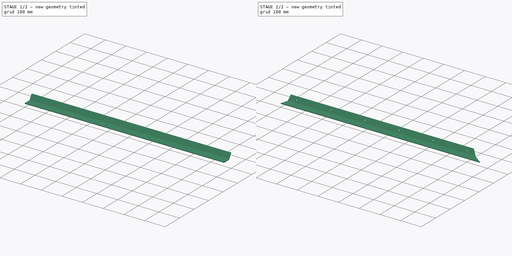
[diagram: build sequence overview — one tinted view per stage of 2, left to right]
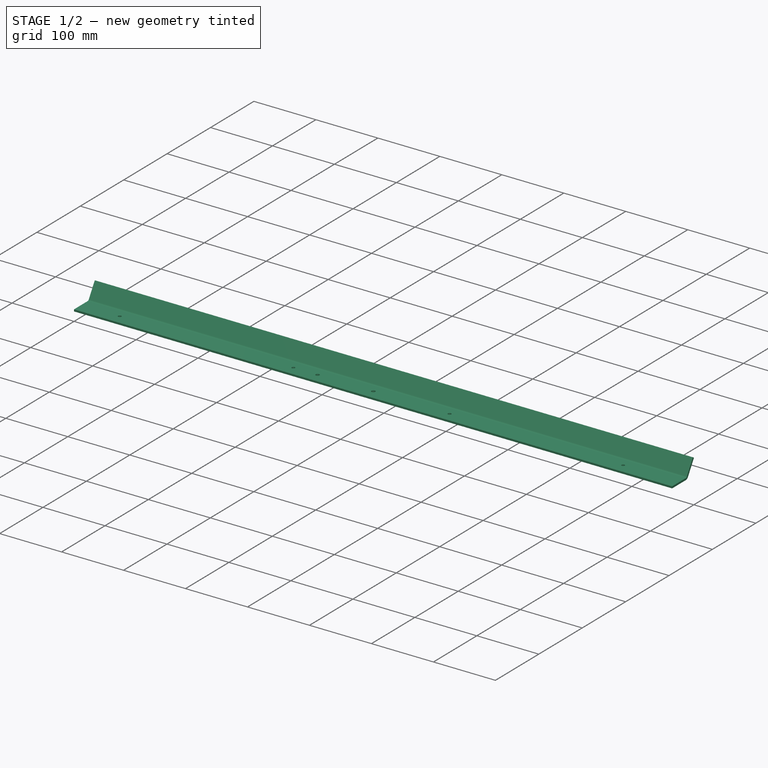
[diagram: stage 1 of 2 — iso view after this stage's code; geometry added in this stage tinted green]
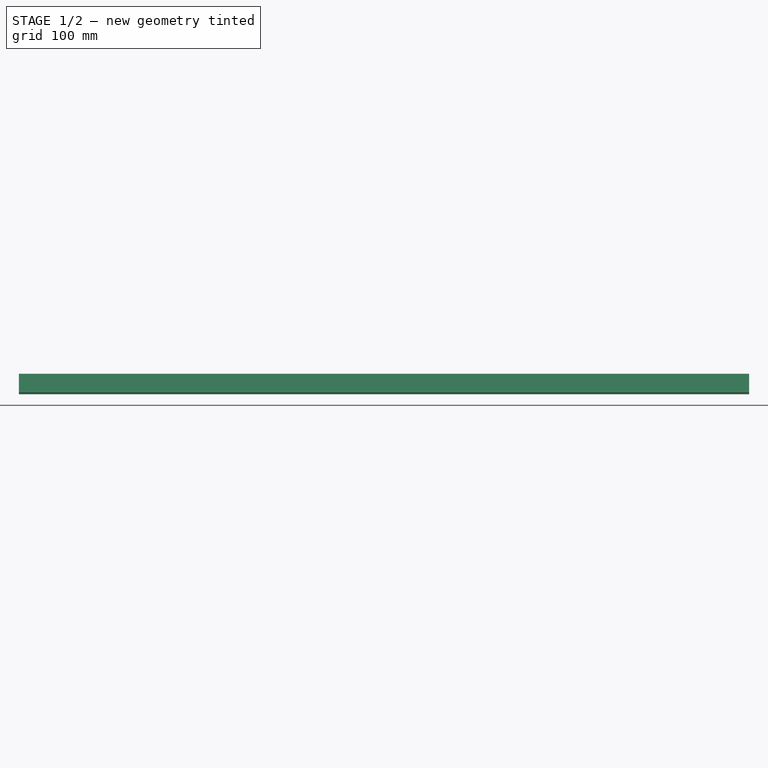
[diagram: stage 1 of 2 — front view after this stage's code; geometry added in this stage tinted green]
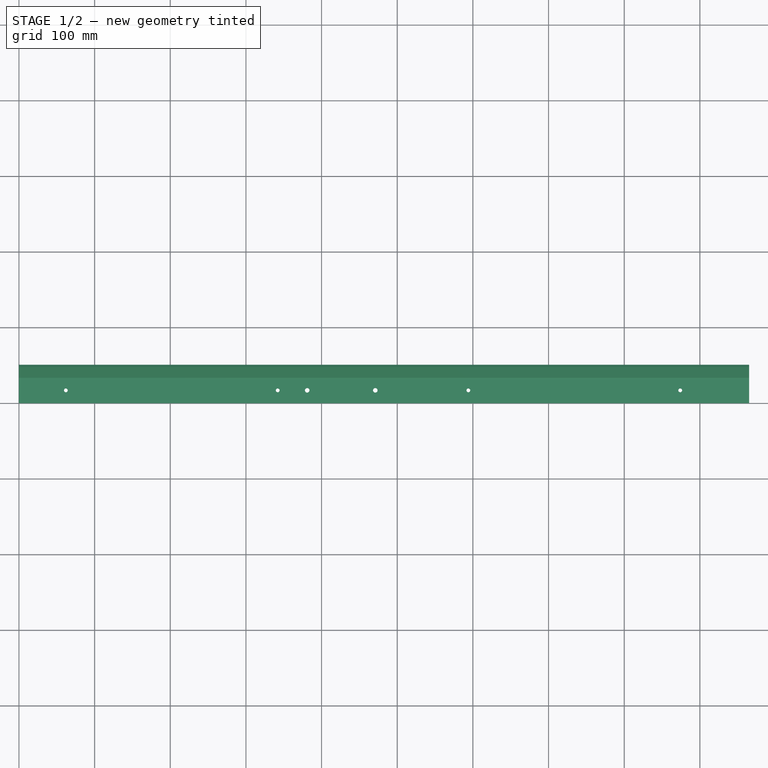
[diagram: stage 1 of 2 — top view after this stage's code; geometry added in this stage tinted green]
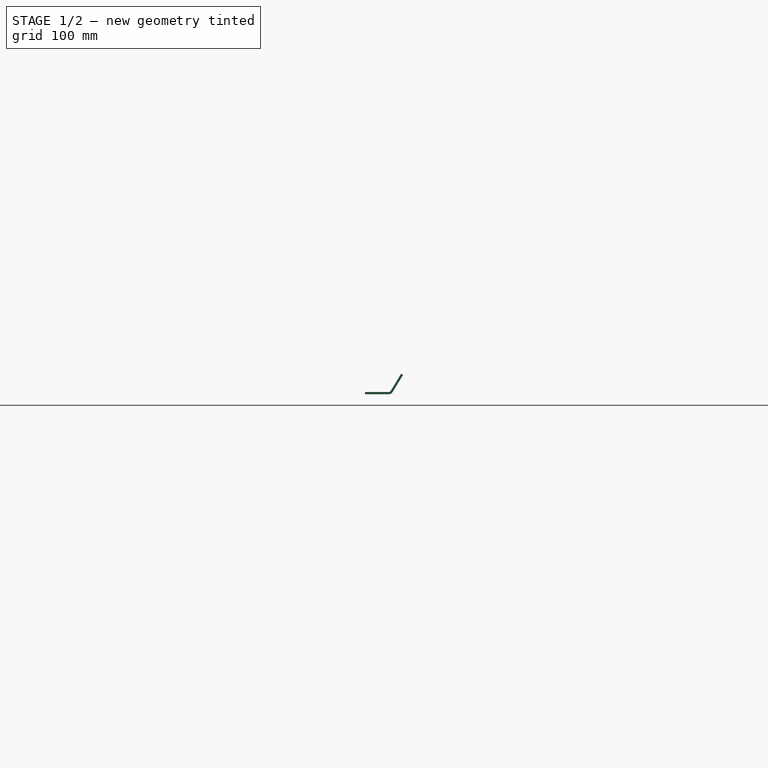
[diagram: stage 1 of 2 — right view after this stage's code; geometry added in this stage tinted green]
FCSTD DOCUMENT  (FreeCAD 0.20R29603 (Git))
Label: C520-210-pliage
License: All rights reserved
LicenseURL: http://en.wikipedia.org/wiki/All_rights_reserved
objects: Sketcher::SketchObject×5, PartDesign::Pocket×2, PartDesign::Pad×1, PartDesign::FeaturePython×1, PartDesign::Body×1
note: 13 computed .brp shape members not serialized (recipe doc carries the construction recipe); baked Part::Feature solids carry a one-line shape summary decoded from their .brp

FEATURE [Sketcher::SketchObject] Sketch
  FullyConstrained = true
  MapMode = 5
  Support = -> [XY_Plane]
  sketch-geometry (10):
    g0: LineSegment StartX=0 StartY=0 StartZ=0 EndX=965 EndY=0 EndZ=0
    g1: LineSegment StartX=965 StartY=0 StartZ=0 EndX=965 EndY=31.4 EndZ=0
    g2: LineSegment StartX=965 StartY=31.4 StartZ=0 EndX=0 EndY=31.4 EndZ=0
    g3: LineSegment StartX=0 StartY=31.4 StartZ=0 EndX=0 EndY=0 EndZ=0
    g4: Circle CenterX=62 CenterY=17 CenterZ=0 NormalX=0 NormalY=0 NormalZ=1 AngleXU=0 Radius=2.5
    g5: Circle CenterX=342 CenterY=17 CenterZ=0 NormalX=0 NormalY=0 NormalZ=1 AngleXU=0 Radius=2.5
    g6: Circle CenterX=381 CenterY=17 CenterZ=0 NormalX=0 NormalY=0 NormalZ=1 AngleXU=0 Radius=3
    g7: Circle CenterX=471 CenterY=17 CenterZ=0 NormalX=0 NormalY=0 NormalZ=1 AngleXU=0 Radius=3
    g8: Circle CenterX=594 CenterY=17 CenterZ=0 NormalX=0 NormalY=0 NormalZ=1 AngleXU=0 Radius=2.5
    g9: Circle CenterX=874 CenterY=17 CenterZ=0 NormalX=0 NormalY=0 NormalZ=1 AngleXU=0 Radius=2.5
  constraints (29):
    c: Coincident(g0,g1)
    c: Coincident(g1,g2)
    c: Coincident(g2,g3)
    c: Coincident(g3,g0)
    c: Horizontal(g0)
    c: Horizontal(g2)
    c: Vertical(g1)
    c: Vertical(g3)
    c: Coincident(g0,g-1)
    c: DistanceX(g2,g2) = 965
    c: DistanceY(g1,g1) = 31.4
    c: DistanceX(g0,g4) = 62
    c: DistanceX(g4,g5) = 280
    c: DistanceX(g5,g6) = 39
    c: DistanceX(g6,g7) = 90
    c: DistanceX(g7,g8) = 123
    c: DistanceX(g8,g9) = 280
    c: Horizontal(g4,g5)
    c: Horizontal(g5,g6)
    c: Horizontal(g6,g7)
    c: Horizontal(g7,g8)
    c: Horizontal(g8,g9)
    c: Equal(g6,g7)
    c: Diameter(g6) = 6
    c: DistanceY(g0,g4) = 17
    c: Equal(g4,g5)
    c: Equal(g4,g8)
    c: Equal(g4,g9)
    c: Diameter(g4) = 5
FEATURE [PartDesign::Pad] Pad
  Direction = (0,0,1)
  Length = 3
  Length2 = 10
  Profile = -> Sketch
  ReferenceAxis = -> Sketch [N_Axis]
  Type = 0
FEATURE [PartDesign::FeaturePython] Bend  # WARN: FeaturePython — macro-defined, semantics opaque (R4)
  AutoMiter = true
  BaseFeature = -> Pad
  BendType = 0
  LengthList = [26.6]
  LengthSpec = 0
  ReliefFactor = 0.7
  UseReliefFactor = false
  angle = 58.6
  baseObject = -> Pad [Face3]
  bendAList = [58.6]
  extend1 = 0
  extend2 = 0
  gap1 = 0
  gap2 = 0
  invert = false
  kfactor = 0.5
  length = 26.6
  maxExtendDist = 5
  minGap = 0.1
  minReliefGap = 1
  miterangle1 = 0
  miterangle2 = 0
  offset = 0
  radius = 3
  reliefType = 0
  reliefd = 1
  reliefw = 0.8
  sketchflip = false
  sketchinvert = false
  unfold = false
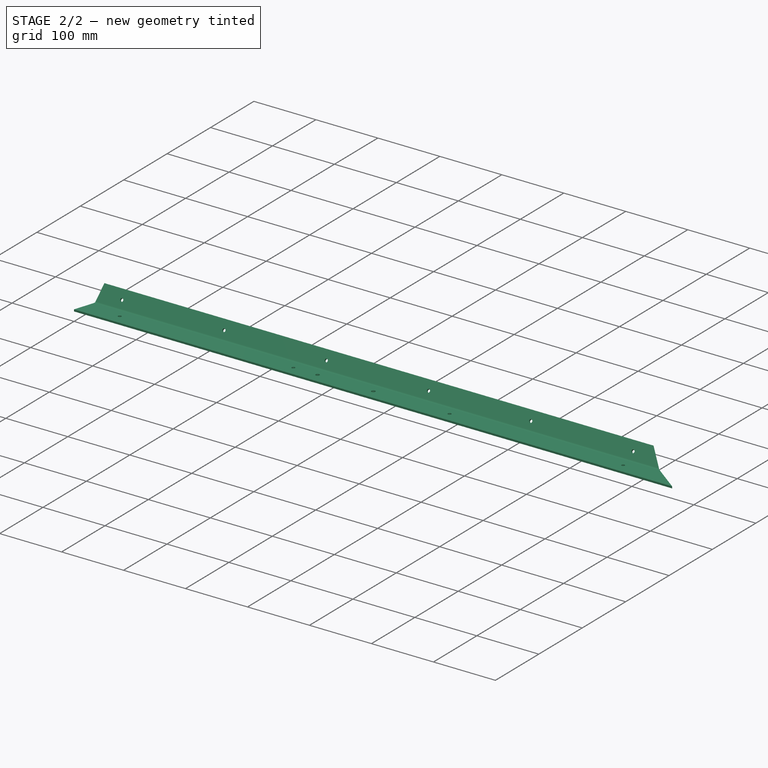
[diagram: stage 2 of 2 — iso view after this stage's code; geometry added in this stage tinted green]
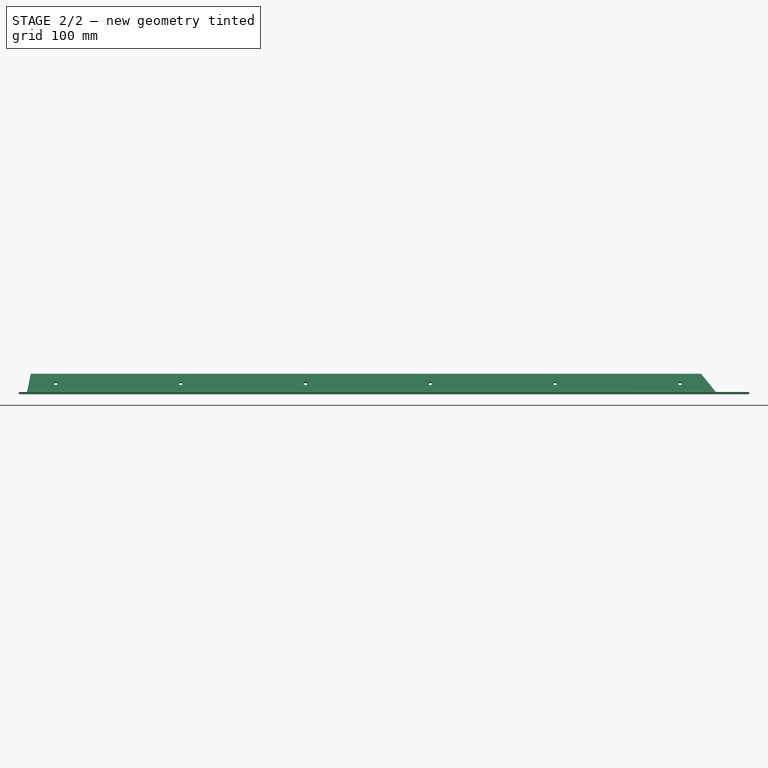
[diagram: stage 2 of 2 — front view after this stage's code; geometry added in this stage tinted green]
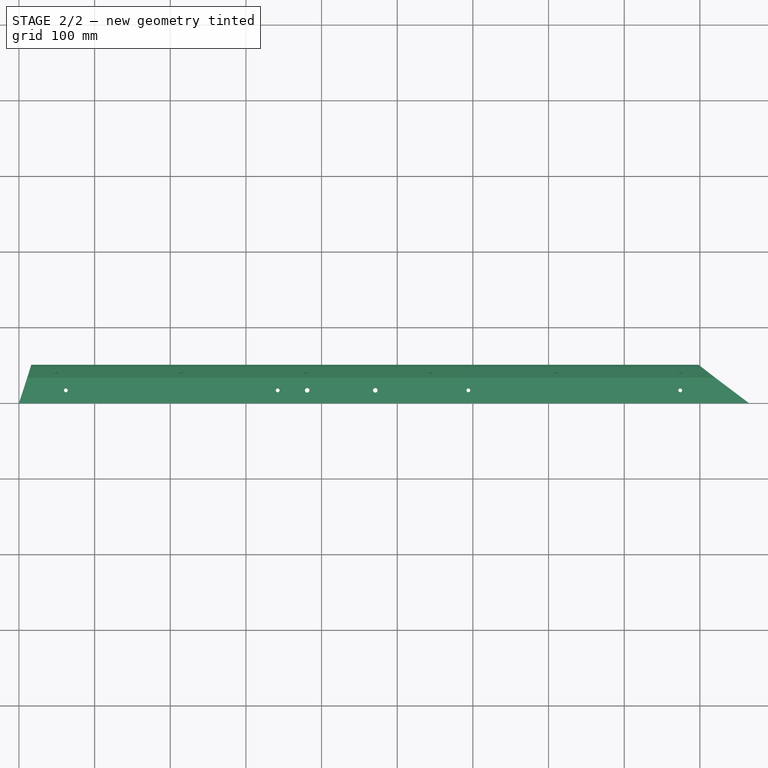
[diagram: stage 2 of 2 — top view after this stage's code; geometry added in this stage tinted green]
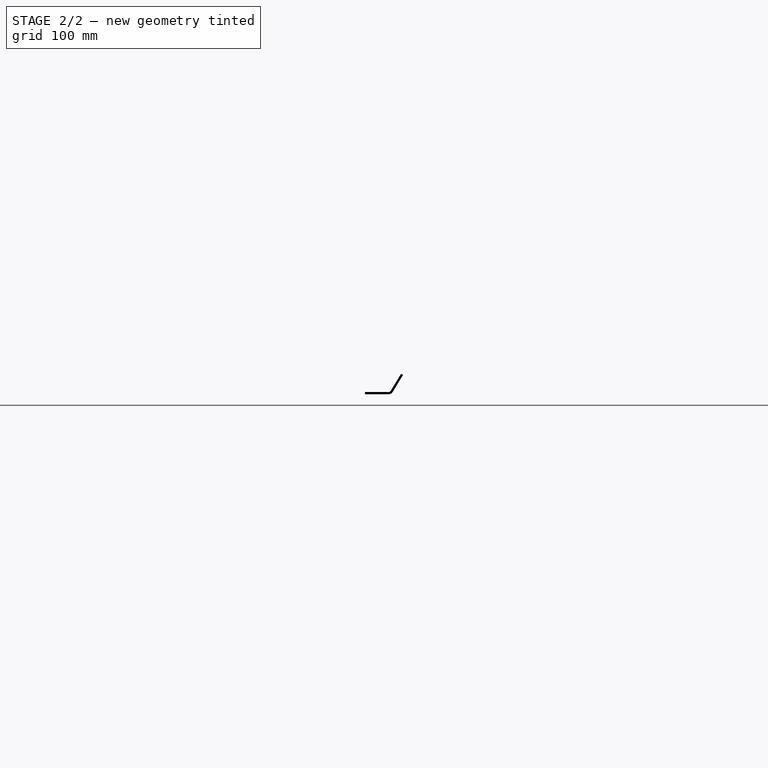
[diagram: stage 2 of 2 — right view after this stage's code; geometry added in this stage tinted green]
FEATURE [Sketcher::SketchObject] Sketch001
  ExternalGeometry = -> [Bend]
  FullyConstrained = true
  MapMode = 5
  Placement = pos=(0,0,3) rot=(0,0,1;0rad)
  Support = -> [Bend]
  sketch-geometry (6):
    g0: LineSegment StartX=0 StartY=0 StartZ=0 EndX=22.7444 EndY=70 EndZ=0
    g1: LineSegment StartX=22.7444 StartY=70 StartZ=0 EndX=0 EndY=70 EndZ=0
    g2: LineSegment StartX=0 StartY=70 StartZ=0 EndX=0 EndY=0 EndZ=0
    g3: LineSegment StartX=965 StartY=0 StartZ=0 EndX=872.107 EndY=70 EndZ=0
    g4: LineSegment StartX=872.107 StartY=70 StartZ=0 EndX=965 EndY=70 EndZ=0
    g5: LineSegment StartX=965 StartY=70 StartZ=0 EndX=965 EndY=0 EndZ=0
  constraints (16):
    c: Coincident(g-1,g0)
    c: Coincident(g0,g1)
    c: PointOnObject(g1,g-2)
    c: Horizontal(g1)
    c: Coincident(g1,g2)
    c: Coincident(g2,g0)
    c: Coincident(g-3,g3)
    c: Coincident(g3,g4)
    c: Horizontal(g4)
    c: Coincident(g4,g5)
    c: Coincident(g5,g3)
    c: Vertical(g5)
    c: Horizontal(g0,g3)
    c: DistanceY(g2,g2) = 70
    c: Angle(g0,g2) = 0.314159
    c: Angle(g5,g3) = 0.925025
FEATURE [PartDesign::Pocket] Pocket
  BaseFeature = -> Bend
  Direction = (0,0,-1)
  Length = 40
  Length2 = 40
  Profile = -> Sketch001
  ReferenceAxis = -> Sketch001 [N_Axis]
  Type = 4
FEATURE [Sketcher::SketchObject] Sketch002
  FullyConstrained = true
  MapMode = 5
  Placement = pos=(0,22.7688,-13.8982) rot=(1,0,0;1.02276rad)
  Support = -> [Pocket]
FEATURE [Sketcher::SketchObject] Sketch003
  ExternalGeometry = -> [Pocket]
  FullyConstrained = true
  MapMode = 5
  Placement = pos=(0,22.7688,-13.8982) rot=(1,0,0;1.02276rad)
  Support = -> [Pocket]
  sketch-geometry (6):
    g0: Circle CenterX=48.8 CenterY=33.081 CenterZ=0 NormalX=0 NormalY=0 NormalZ=1 AngleXU=0 Radius=2.5
    g1: Circle CenterX=213.8 CenterY=33.081 CenterZ=0 NormalX=0 NormalY=0 NormalZ=1 AngleXU=0 Radius=2.5
    g2: Circle CenterX=378.8 CenterY=33.081 CenterZ=0 NormalX=0 NormalY=0 NormalZ=1 AngleXU=0 Radius=2.5
    g3: Circle CenterX=543.8 CenterY=33.081 CenterZ=0 NormalX=0 NormalY=0 NormalZ=1 AngleXU=0 Radius=2.5
    g4: Circle CenterX=708.8 CenterY=33.081 CenterZ=0 NormalX=0 NormalY=0 NormalZ=1 AngleXU=0 Radius=2.5
    g5: Circle CenterX=873.8 CenterY=33.081 CenterZ=0 NormalX=0 NormalY=0 NormalZ=1 AngleXU=0 Radius=2.5
  constraints (14):
    c: Horizontal(g0,g1)
    c: Horizontal(g1,g2)
    c: Horizontal(g2,g3)
    c: Horizontal(g3,g4)
    c: Horizontal(g4,g5)
    c: DistanceX(g-1,g0) = 48.8
    c: DistanceX(g0,g1) = 165
    c: DistanceX(g1,g2) = 165
    c: DistanceX(g2,g3) = 165
    c: DistanceX(g3,g4) = 165
    c: DistanceX(g4,g5) = 165
    c: DistanceY(g0,g-3) = 15
    c: Equal(g0, g1-g5) x5
    c: Diameter(g0) = 5
FEATURE [PartDesign::Pocket] Pocket001
  BaseFeature = -> Pocket
  Direction = (0,0.853551,-0.52101)
  Length = 5
  Length2 = 5
  Profile = -> Sketch003
  ReferenceAxis = -> Sketch003 [N_Axis]
  Type = 0
FEATURE [PartDesign::Body] Body
  Group = -> [Sketch,Pad,Bend,Sketch001,Pocket,Sketch002,Sketch003,Pocket001]
  Origin = -> Origin
  Tip = -> Pocket001
FEATURE [Sketcher::SketchObject] Unfold_Sketch
  FullyConstrained = false
  sketch-geometry (22):
    g0: LineSegment StartX=11.0345 StartY=35.6956 StartZ=0 EndX=15.5375 EndY=62.2956 EndZ=0
    g1: LineSegment StartX=901.541 StartY=62.2956 StartZ=0 EndX=15.5375 EndY=62.2956 EndZ=0
    g2: LineSegment StartX=919.933 StartY=35.6956 StartZ=0 EndX=901.541 EndY=62.2956 EndZ=0
    g3: BSplineCurve PolesCount=15 KnotsCount=13 Degree=3 IsPeriodic=0
    g4: BSplineCurve PolesCount=15 KnotsCount=13 Degree=3 IsPeriodic=0
    g5: BSplineCurve PolesCount=15 KnotsCount=13 Degree=3 IsPeriodic=0
    g6: LineSegment StartX=-1.42e-14 StartY=0 StartZ=0 EndX=10.2025 EndY=31.4 EndZ=0
    g7: LineSegment StartX=965 StartY=0 StartZ=0 EndX=923.331 EndY=31.4 EndZ=0
    g8: LineSegment StartX=0 StartY=0 StartZ=0 EndX=965 EndY=0 EndZ=0
    g9: Circle CenterX=381 CenterY=17 CenterZ=0 NormalX=0 NormalY=0 NormalZ=1 AngleXU=0 Radius=3
    g10: Circle CenterX=471 CenterY=17 CenterZ=0 NormalX=0 NormalY=0 NormalZ=1 AngleXU=0 Radius=3
    g11: Circle CenterX=48.8 CenterY=47.2956 CenterZ=0 NormalX=0 NormalY=0 NormalZ=1 AngleXU=0 Radius=2.5
    g12: Circle CenterX=213.8 CenterY=47.2956 CenterZ=0 NormalX=0 NormalY=0 NormalZ=1 AngleXU=0 Radius=2.5
    g13: Circle CenterX=378.8 CenterY=47.2956 CenterZ=0 NormalX=0 NormalY=0 NormalZ=1 AngleXU=0 Radius=2.5
    g14: Circle CenterX=543.8 CenterY=47.2956 CenterZ=0 NormalX=0 NormalY=0 NormalZ=1 AngleXU=0 Radius=2.5
    g15: Circle CenterX=708.8 CenterY=47.2956 CenterZ=0 NormalX=0 NormalY=0 NormalZ=1 AngleXU=0 Radius=2.5
    g16: Circle CenterX=873.8 CenterY=47.2956 CenterZ=0 NormalX=0 NormalY=0 NormalZ=1 AngleXU=0 Radius=2.5
    g17: Circle CenterX=62 CenterY=17 CenterZ=0 NormalX=0 NormalY=0 NormalZ=1 AngleXU=0 Radius=2.5
    g18: Circle CenterX=342 CenterY=17 CenterZ=0 NormalX=0 NormalY=0 NormalZ=1 AngleXU=0 Radius=2.5
    g19: Circle CenterX=594 CenterY=17 CenterZ=0 NormalX=0 NormalY=0 NormalZ=1 AngleXU=0 Radius=2.5
    g20: Circle CenterX=874 CenterY=17 CenterZ=0 NormalX=0 NormalY=0 NormalZ=1 AngleXU=0 Radius=2.5
    g21: LineSegment StartX=921.382 StartY=33.5478 StartZ=0 EndX=10.6795 EndY=33.5478 EndZ=0
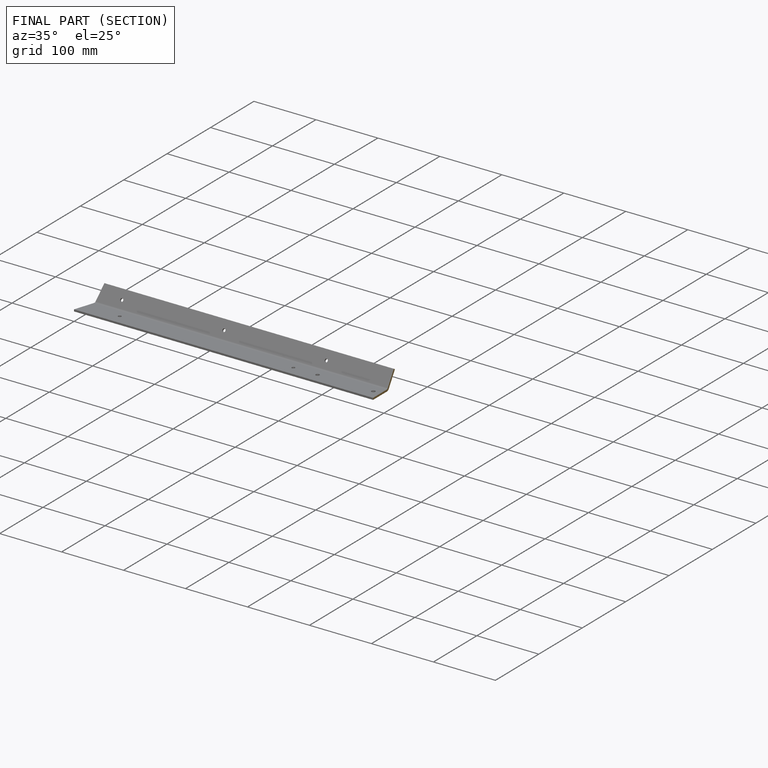
[diagram: finished part — half-section view (interior)]
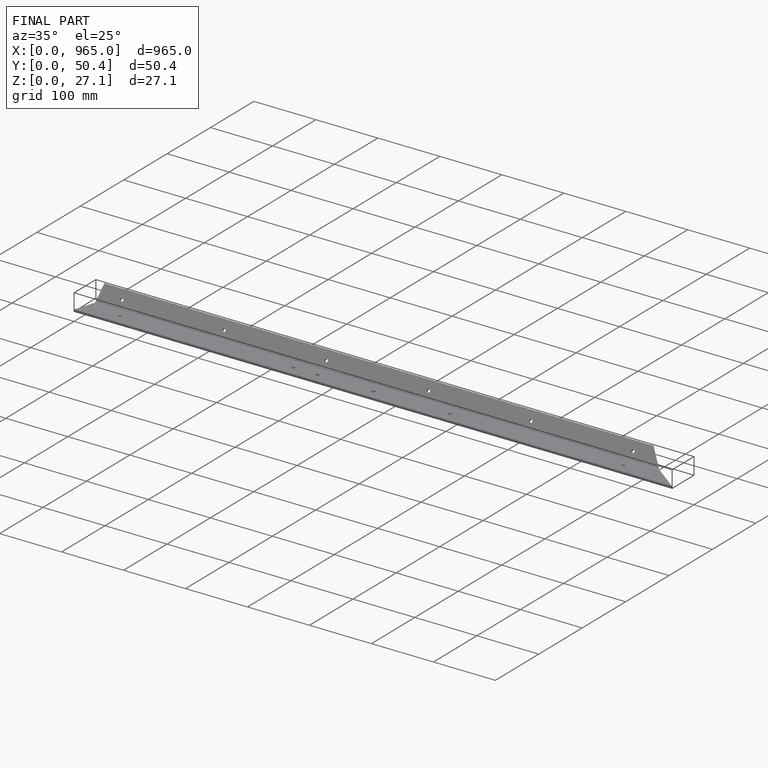
[diagram: finished part — iso view with bounding-box wireframe]
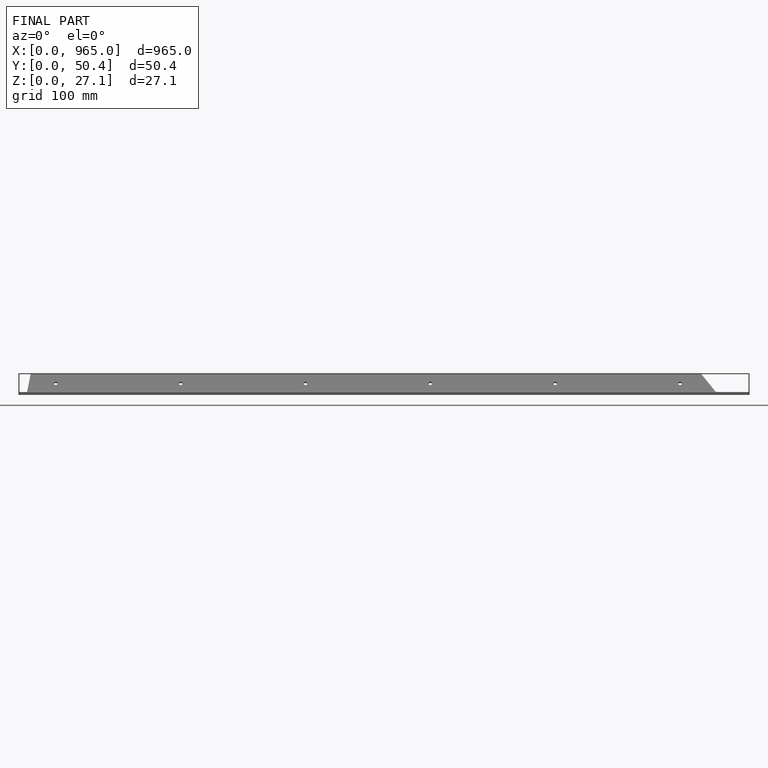
[diagram: finished part — front view with bounding-box wireframe]
